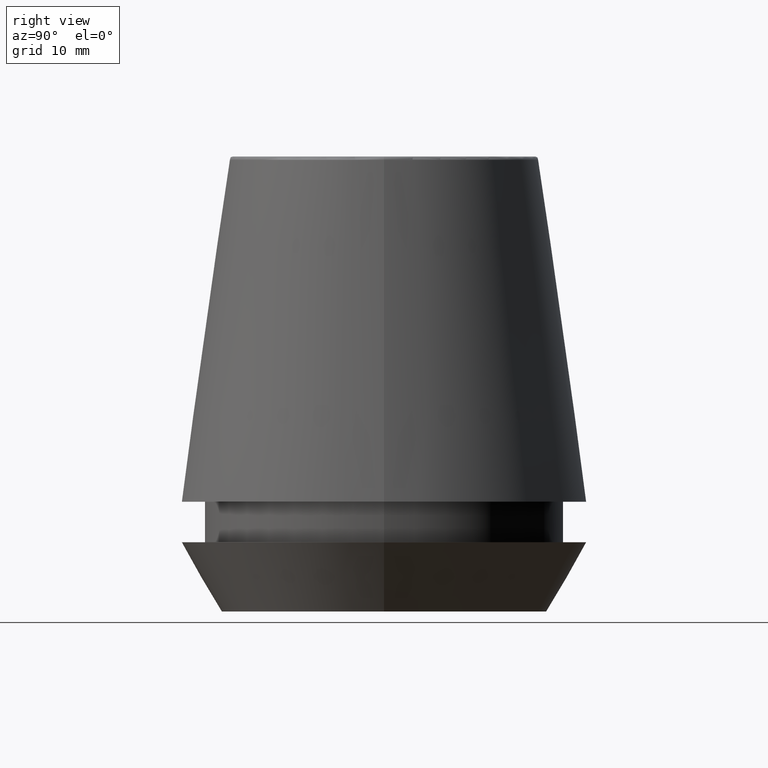
[diagram: clean part render]
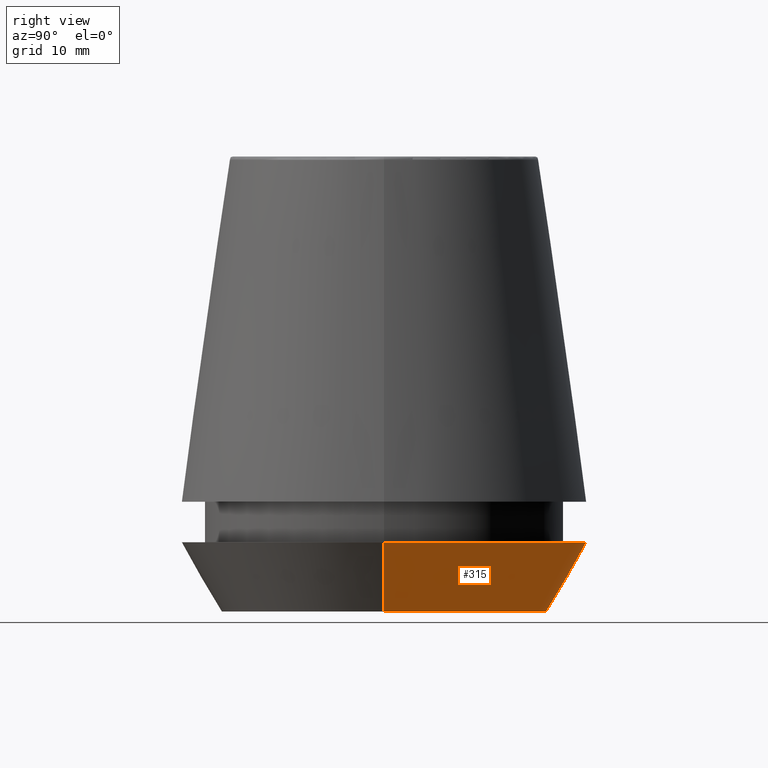
[diagram: same view with one face highlighted and labeled with its STEP entity id]
A machine part, right view. The second image highlights one B-rep face of the part: STEP entity #315.
In plain terms, the highlighted conical surface has half-angle 30 deg.
Its self-contained STEP definition (entity closure, byte-faithful):
#1 = VERTEX_POINT ( 'NONE', #348 ) ;
#2 = CONICAL_SURFACE ( 'NONE', #286, 16.45854811567268100, 0.5235987755982921500 ) ;
#19 = CARTESIAN_POINT ( 'NONE',  ( 16.45854811567268100, 0.0000000000000000000, 0.0000000000000000000 ) ) ;
#28 = EDGE_CURVE ( 'NONE', #168, #187, #375, .T. ) ;
#34 = FACE_OUTER_BOUND ( 'NONE', #87, .T. ) ;
#35 = LINE ( 'NONE', #341, #209 ) ;
#37 = DIRECTION ( 'NONE',  ( 1.000000000000000000, 0.0000000000000000000, 0.0000000000000000000 ) ) ;
#70 = CARTESIAN_POINT ( 'NONE',  ( 0.0000000000000000000, 0.0000000000000000000, 0.0000000000000000000 ) ) ;
#71 = AXIS2_PLACEMENT_3D ( 'NONE', #244, #282, #72 ) ;
#72 = DIRECTION ( 'NONE',  ( 1.000000000000000000, 0.0000000000000000000, 0.0000000000000000000 ) ) ;
#80 = CARTESIAN_POINT ( 'NONE',  ( -20.50000000000000000, 2.510525938252074100E-015, 7.000000000000006200 ) ) ;
#84 = CARTESIAN_POINT ( 'NONE',  ( -16.45854811567268100, 2.263058382549599700E-015, 0.0000000000000000000 ) ) ;
#87 = EDGE_LOOP ( 'NONE', ( #158, #253, #174, #308 ) ) ;
#95 = DIRECTION ( 'NONE',  ( -0.4999999999999941700, 6.123233995736694500E-017, 0.8660254037844420400 ) ) ;
#100 = DIRECTION ( 'NONE',  ( 1.000000000000000000, 0.0000000000000000000, 0.0000000000000000000 ) ) ;
#127 = VERTEX_POINT ( 'NONE', #19 ) ;
#131 = VECTOR ( 'NONE', #95, 1000.000000000000000 ) ;
#138 = DIRECTION ( 'NONE',  ( 0.4999999999999941700, 0.0000000000000000000, 0.8660254037844420400 ) ) ;
#143 = CARTESIAN_POINT ( 'NONE',  ( -16.45854811567268100, 2.015590826847124800E-015, 0.0000000000000000000 ) ) ;
#158 = ORIENTED_EDGE ( 'NONE', *, *, #358, .T. ) ;
#168 = VERTEX_POINT ( 'NONE', #84 ) ;
#174 = ORIENTED_EDGE ( 'NONE', *, *, #201, .F. ) ;
#185 = EDGE_CURVE ( 'NONE', #127, #1, #35, .T. ) ;
#187 = VERTEX_POINT ( 'NONE', #80 ) ;
#200 = CIRCLE ( 'NONE', #71, 20.50000000000000000 ) ;
#201 = EDGE_CURVE ( 'NONE', #1, #187, #200, .T. ) ;
#209 = VECTOR ( 'NONE', #138, 1000.000000000000000 ) ;
#217 = DIRECTION ( 'NONE',  ( -0.0000000000000000000, -0.0000000000000000000, 1.000000000000000000 ) ) ;
#238 = AXIS2_PLACEMENT_3D ( 'NONE', #70, #217, #100 ) ;
#244 = CARTESIAN_POINT ( 'NONE',  ( 0.0000000000000000000, 0.0000000000000000000, 7.000000000000006200 ) ) ;
#251 = CARTESIAN_POINT ( 'NONE',  ( 0.0000000000000000000, 0.0000000000000000000, 0.0000000000000000000 ) ) ;
#253 = ORIENTED_EDGE ( 'NONE', *, *, #28, .T. ) ;
#282 = DIRECTION ( 'NONE',  ( -0.0000000000000000000, -0.0000000000000000000, 1.000000000000000000 ) ) ;
#286 = AXIS2_PLACEMENT_3D ( 'NONE', #251, #368, #37 ) ;
#308 = ORIENTED_EDGE ( 'NONE', *, *, #185, .F. ) ;
#310 = CIRCLE ( 'NONE', #238, 16.45854811567268100 ) ;
#315 = ADVANCED_FACE ( 'NONE', ( #34 ), #2, .T. ) ;
#341 = CARTESIAN_POINT ( 'NONE',  ( 16.45854811567268100, 0.0000000000000000000, 0.0000000000000000000 ) ) ;
#348 = CARTESIAN_POINT ( 'NONE',  ( 20.50000000000000000, 0.0000000000000000000, 7.000000000000006200 ) ) ;
#358 = EDGE_CURVE ( 'NONE', #127, #168, #310, .T. ) ;
#368 = DIRECTION ( 'NONE',  ( -0.0000000000000000000, -0.0000000000000000000, 1.000000000000000000 ) ) ;
#375 = LINE ( 'NONE', #143, #131 ) ;